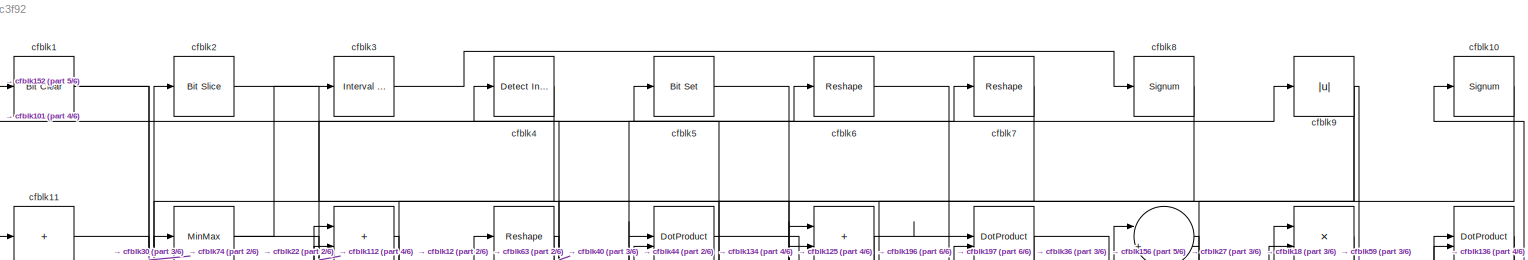
[diagram: root canvas - part 1/6, full width, top band]
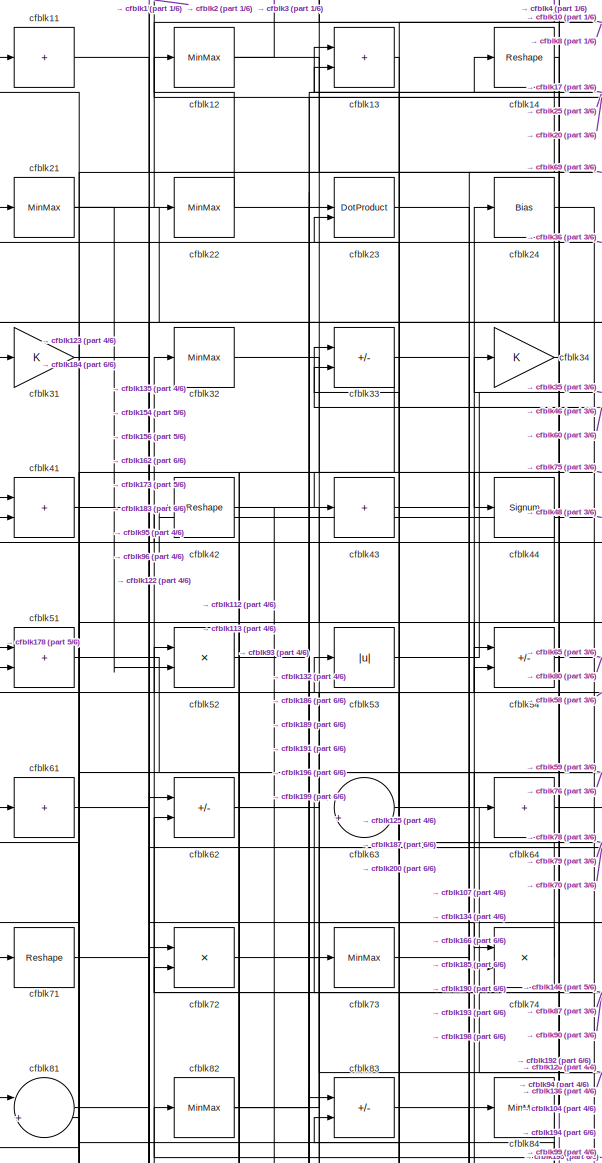
[diagram: root canvas - part 2/6, top left region]
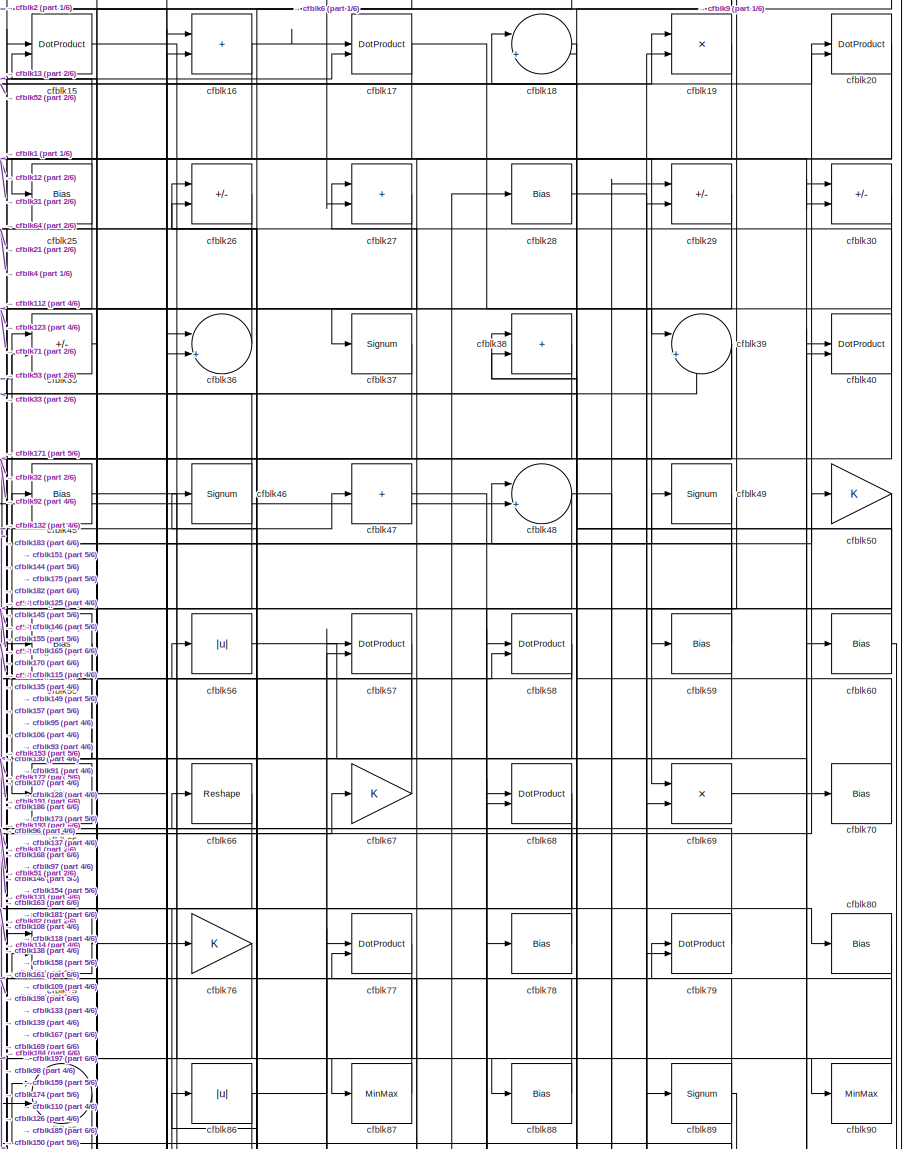
[diagram: root canvas - part 3/6, top right region]
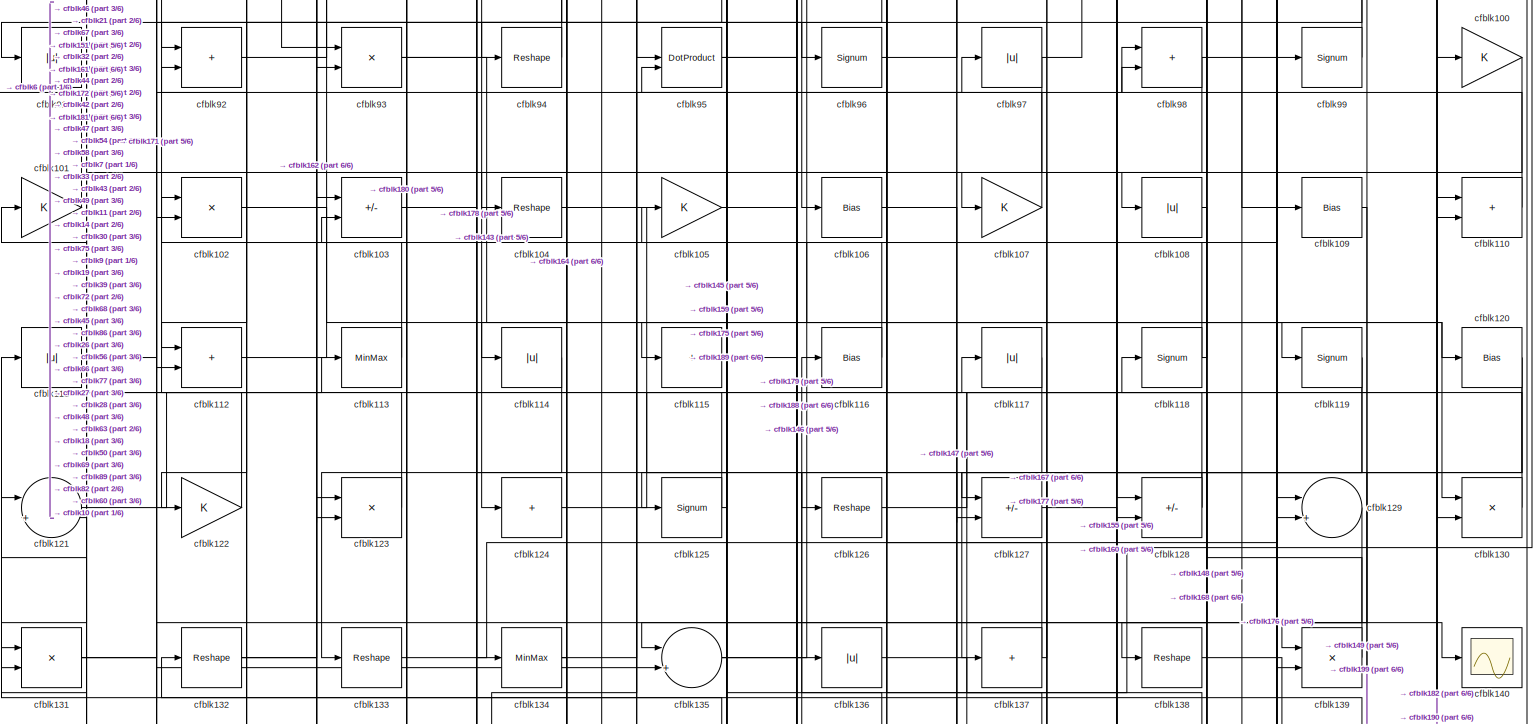
[diagram: root canvas - part 4/6, full width, middle band]
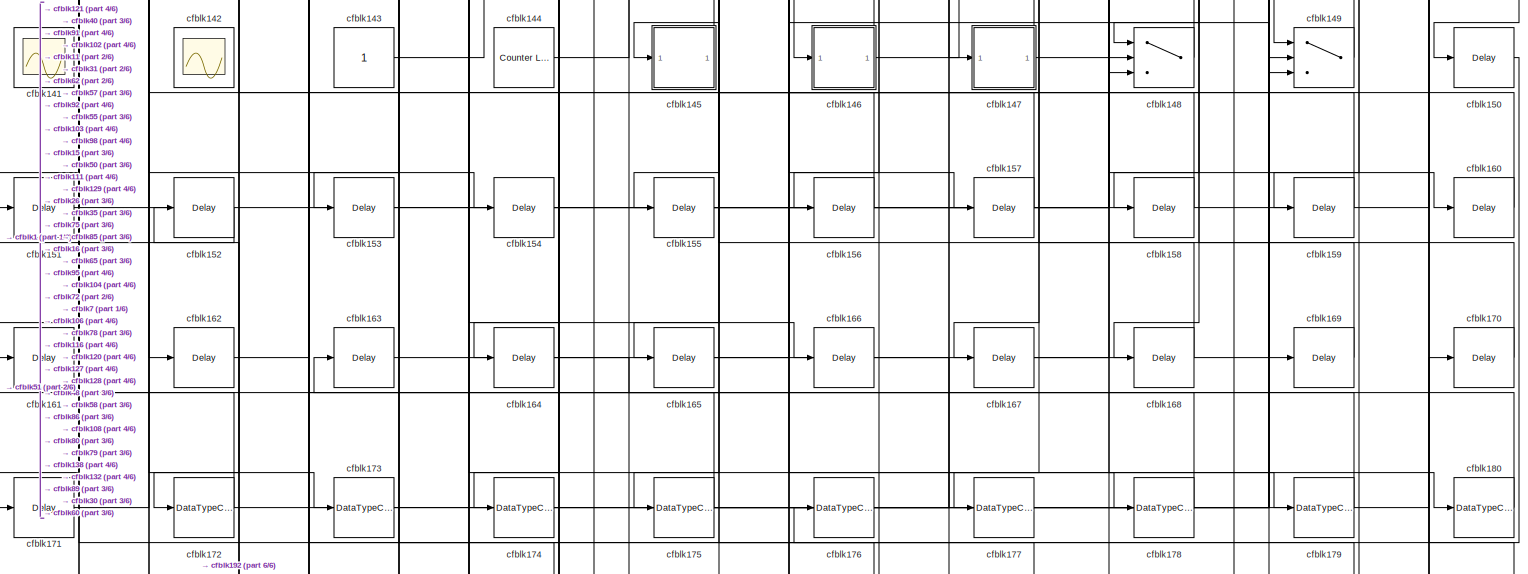
[diagram: root canvas - part 5/6, full width, bottom band]
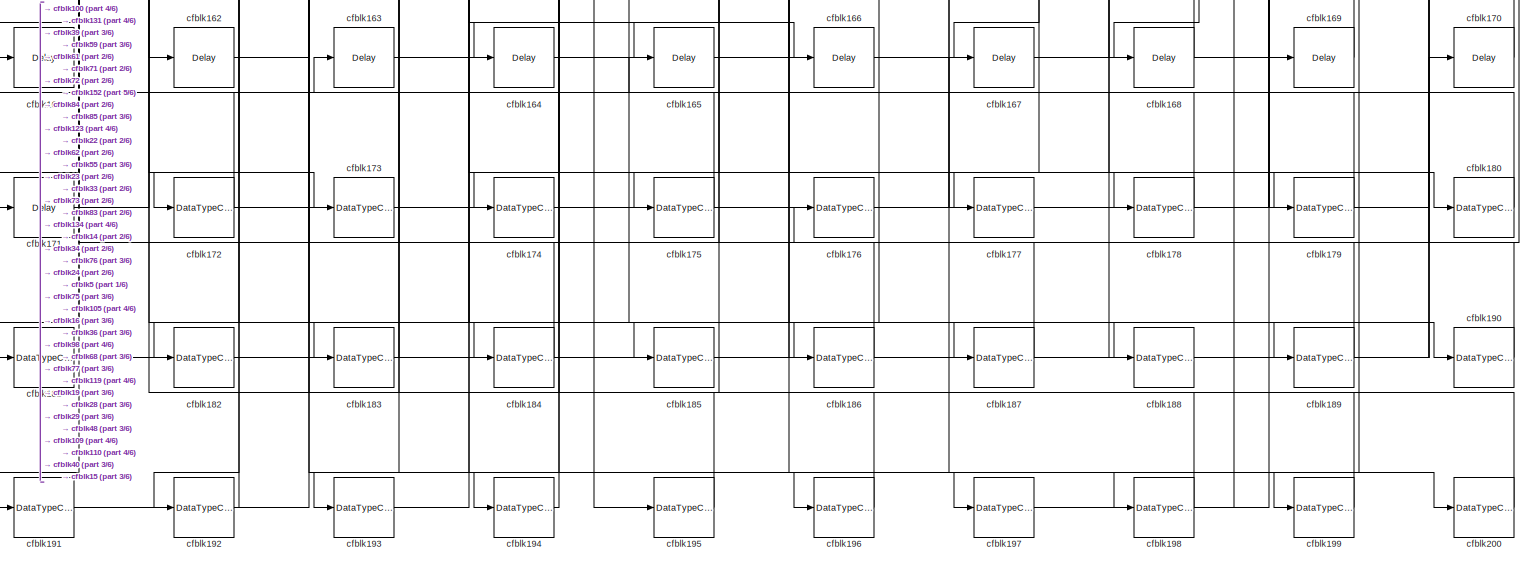
[diagram: root canvas - part 6/6, full width, bottom band]
MODEL slx_9fa7b20c3f92
KIND model
CONFIG AbsTol = auto
CONFIG EnableMultiTasking = off
CONFIG FixedStep = auto
CONFIG MaxStep = auto
CONFIG MinStep = auto
CONFIG RelTol = 1e-3
CONFIG SampleTimeConstraint = Unconstrained
CONFIG SolverName = VariableStepAuto
CONFIG StartTime = 0.0
CONFIG StopTime = 10.0
BLOCK [Reference] cfblk1  REF=simulink/Logic and Bit
Operations/Bit Clear
  LibrarySourceBlock = hdlsllib/Logic and Bit\nOperations/Bit Clear
  SourceBlock = simulink/Logic and Bit\nOperations/Bit Clear
  SourceType = Bit Clear
BLOCK [Signum] cfblk10
BLOCK [Gain] cfblk100
BLOCK [Gain] cfblk101
BLOCK [Product] cfblk102
  Inputs = */
  RndMeth = Zero
  SaturateOnIntegerOverflow = on
BLOCK [Sum] cfblk103
  IconShape = rectangular
  Inputs = +-
BLOCK [Reshape] cfblk104
BLOCK [Gain] cfblk105
BLOCK [Bias] cfblk106
  Bias = 0.0
  SaturateOnIntegerOverflow = off
BLOCK [Gain] cfblk107
BLOCK [Abs] cfblk108
  SaturateOnIntegerOverflow = off
BLOCK [Bias] cfblk109
  Bias = 0.0
  SaturateOnIntegerOverflow = off
BLOCK [Sum] cfblk11
  IconShape = rectangular
  Inputs = +
BLOCK [Sum] cfblk110
  IconShape = rectangular
BLOCK [Abs] cfblk111
  SaturateOnIntegerOverflow = off
BLOCK [Sum] cfblk112
  IconShape = rectangular
BLOCK [MinMax] cfblk113
BLOCK [Abs] cfblk114
  SaturateOnIntegerOverflow = off
BLOCK [Sum] cfblk115
  IconShape = rectangular
  Inputs = +
BLOCK [Bias] cfblk116
  Bias = 0.0
  SaturateOnIntegerOverflow = off
BLOCK [Abs] cfblk117
  SaturateOnIntegerOverflow = off
BLOCK [Signum] cfblk118
BLOCK [Signum] cfblk119
BLOCK [MinMax] cfblk12
BLOCK [Bias] cfblk120
  Bias = 0.0
  SaturateOnIntegerOverflow = off
BLOCK [Sum] cfblk121
  Inputs = |++
BLOCK [Gain] cfblk122
BLOCK [Product] cfblk123
  Inputs = */
  RndMeth = Zero
  SaturateOnIntegerOverflow = on
BLOCK [Sum] cfblk124
  IconShape = rectangular
  Inputs = +
BLOCK [Signum] cfblk125
BLOCK [Reshape] cfblk126
BLOCK [Sum] cfblk127
  IconShape = rectangular
  Inputs = +-
BLOCK [Sum] cfblk128
  IconShape = rectangular
  Inputs = +-
BLOCK [Sum] cfblk129
  Inputs = |++
BLOCK [Sum] cfblk13
  IconShape = rectangular
BLOCK [Product] cfblk130
  Inputs = */
  RndMeth = Zero
  SaturateOnIntegerOverflow = on
BLOCK [Product] cfblk131
  Inputs = */
  RndMeth = Zero
  SaturateOnIntegerOverflow = on
BLOCK [Reshape] cfblk132
BLOCK [Reshape] cfblk133
BLOCK [MinMax] cfblk134
BLOCK [Sum] cfblk135
  Inputs = |++
BLOCK [Abs] cfblk136
  SaturateOnIntegerOverflow = off
BLOCK [Sum] cfblk137
  IconShape = rectangular
  Inputs = +
BLOCK [Reshape] cfblk138
BLOCK [Product] cfblk139
  Inputs = */
  RndMeth = Zero
  SaturateOnIntegerOverflow = on
BLOCK [Reshape] cfblk14
BLOCK [Scope] cfblk140
  Floating = off
  NumInputPorts = 1
  ScopeSpecificationString = Simulink.scopes.TimeScopeBlockCfg('CurrentConfiguration', extmgr.ConfigurationSet(extmgr.Configuration('Core','General UI',true),extmgr.Configuration('Core','Source UI',true),extmgr.Configuration('Sources','WiredSimulink',true,'DataLoggingVariableName','ScopeData2','DataLoggingSaveFormat','Array','DataLoggingLimitDataPoints',true,'DataLoggingDecimation','1'),extmgr.Configuration('Visuals','Time Do...<+868ch>
BLOCK [Scope] cfblk141
  Floating = on
  NumInputPorts = 1
  ScopeSpecificationString = Simulink.scopes.TimeScopeBlockCfg('CurrentConfiguration', extmgr.ConfigurationSet(extmgr.Configuration('Core','General UI',true,'FigureColor',[0.156862745098039 0.156862745098039 0.156862745098039]),extmgr.Configuration('Core','Source UI',true),extmgr.Configuration('Sources','WiredSimulink',true,'DataLoggingVariableName','ScopeData1','DataLoggingSaveFormat','StructureWithTime','DataLoggingLimitDat...<+2713ch>
BLOCK [Scope] cfblk142
  Floating = on
  NumInputPorts = 1
  ScopeSpecificationString = Simulink.scopes.TimeScopeBlockCfg('CurrentConfiguration', extmgr.ConfigurationSet(extmgr.Configuration('Core','General UI',true,'FigureColor',[0.156862745098039 0.156862745098039 0.156862745098039]),extmgr.Configuration('Core','Source UI',true),extmgr.Configuration('Sources','WiredSimulink',true,'DataLoggingVariableName','ScopeData1','DataLoggingSaveFormat','StructureWithTime','DataLoggingLimitDat...<+2713ch>
BLOCK [Constant] cfblk143
  SampleTime = -1
BLOCK [Reference] cfblk144  REF=hdlsllib/Sources/Counter
Limited
  SourceBlock = hdlsllib/Sources/Counter\nLimited
  SourceType = Counter Limited
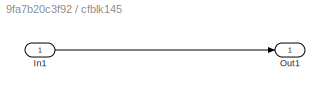
BLOCK [SubSystem] cfblk145
  LibrarySourceBlock = hdlsllib/Ports &\nSubsystems/Subsystem
BLOCK [Inport] cfblk145/In1
BLOCK [Outport] cfblk145/Out1
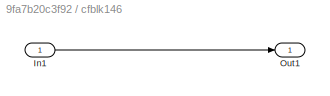
BLOCK [SubSystem] cfblk146
  LibrarySourceBlock = hdlsllib/Ports &\nSubsystems/Subsystem
BLOCK [Inport] cfblk146/In1
BLOCK [Outport] cfblk146/Out1
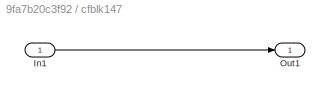
BLOCK [SubSystem] cfblk147
  LibrarySourceBlock = hdlsllib/Ports &\nSubsystems/Subsystem
BLOCK [Inport] cfblk147/In1
BLOCK [Outport] cfblk147/Out1
BLOCK [Switch] cfblk148
  InputSameDT = off
  SaturateOnIntegerOverflow = off
BLOCK [Switch] cfblk149
  InputSameDT = off
  SaturateOnIntegerOverflow = off
BLOCK [DotProduct] cfblk15
  OutDataTypeStr = Inherit: Inherit via internal rule
BLOCK [Delay] cfblk150
  InputPortMap = u0
  SampleTime = 1
BLOCK [Delay] cfblk151
  InputPortMap = u0
  SampleTime = 1
BLOCK [Delay] cfblk152
  InputPortMap = u0
  SampleTime = 1
BLOCK [Delay] cfblk153
  InputPortMap = u0
  SampleTime = 1
BLOCK [Delay] cfblk154
  InputPortMap = u0
  SampleTime = 1
BLOCK [Delay] cfblk155
  InputPortMap = u0
  SampleTime = 1
BLOCK [Delay] cfblk156
  InputPortMap = u0
  SampleTime = 1
BLOCK [Delay] cfblk157
  InputPortMap = u0
  SampleTime = 1
BLOCK [Delay] cfblk158
  InputPortMap = u0
  SampleTime = 1
BLOCK [Delay] cfblk159
  InputPortMap = u0
  SampleTime = 1
BLOCK [Sum] cfblk16
  IconShape = rectangular
BLOCK [Delay] cfblk160
  InputPortMap = u0
  SampleTime = 1
BLOCK [Delay] cfblk161
  InputPortMap = u0
  SampleTime = 1
BLOCK [Delay] cfblk162
  InputPortMap = u0
  SampleTime = 1
BLOCK [Delay] cfblk163
  InputPortMap = u0
  SampleTime = 1
BLOCK [Delay] cfblk164
  InputPortMap = u0
  SampleTime = 1
BLOCK [Delay] cfblk165
  InputPortMap = u0
  SampleTime = 1
BLOCK [Delay] cfblk166
  InputPortMap = u0
  SampleTime = 1
BLOCK [Delay] cfblk167
  InputPortMap = u0
  SampleTime = 1
BLOCK [Delay] cfblk168
  InputPortMap = u0
  SampleTime = 1
BLOCK [Delay] cfblk169
  InputPortMap = u0
  SampleTime = 1
BLOCK [DotProduct] cfblk17
  OutDataTypeStr = Inherit: Inherit via internal rule
BLOCK [Delay] cfblk170
  InputPortMap = u0
  SampleTime = 1
BLOCK [Delay] cfblk171
  InputPortMap = u0
  SampleTime = 1
BLOCK [DataTypeConversion] cfblk172
  RndMeth = Floor
  SaturateOnIntegerOverflow = off
BLOCK [DataTypeConversion] cfblk173
  OutDataTypeStr = uint8
  RndMeth = Floor
  SaturateOnIntegerOverflow = off
BLOCK [DataTypeConversion] cfblk174
  OutDataTypeStr = uint8
  RndMeth = Floor
  SaturateOnIntegerOverflow = off
BLOCK [DataTypeConversion] cfblk175
  RndMeth = Floor
  SaturateOnIntegerOverflow = off
BLOCK [DataTypeConversion] cfblk176
  OutDataTypeStr = uint8
  RndMeth = Floor
  SaturateOnIntegerOverflow = off
BLOCK [DataTypeConversion] cfblk177
  OutDataTypeStr = uint8
  RndMeth = Floor
  SaturateOnIntegerOverflow = off
BLOCK [DataTypeConversion] cfblk178
  OutDataTypeStr = uint8
  RndMeth = Floor
  SaturateOnIntegerOverflow = off
BLOCK [DataTypeConversion] cfblk179
  OutDataTypeStr = uint8
  RndMeth = Floor
  SaturateOnIntegerOverflow = off
BLOCK [Sum] cfblk18
  Inputs = |++
BLOCK [DataTypeConversion] cfblk180
  OutDataTypeStr = uint8
  RndMeth = Floor
  SaturateOnIntegerOverflow = off
BLOCK [DataTypeConversion] cfblk181
  OutDataTypeStr = uint8
  RndMeth = Floor
  SaturateOnIntegerOverflow = off
BLOCK [DataTypeConversion] cfblk182
  OutDataTypeStr = uint8
  RndMeth = Floor
  SaturateOnIntegerOverflow = off
BLOCK [DataTypeConversion] cfblk183
  RndMeth = Floor
  SaturateOnIntegerOverflow = off
BLOCK [DataTypeConversion] cfblk184
  OutDataTypeStr = uint8
  RndMeth = Floor
  SaturateOnIntegerOverflow = off
BLOCK [DataTypeConversion] cfblk185
  OutDataTypeStr = uint8
  RndMeth = Floor
  SaturateOnIntegerOverflow = off
BLOCK [DataTypeConversion] cfblk186
  OutDataTypeStr = uint8
  RndMeth = Floor
  SaturateOnIntegerOverflow = off
BLOCK [DataTypeConversion] cfblk187
  OutDataTypeStr = uint8
  RndMeth = Floor
  SaturateOnIntegerOverflow = off
BLOCK [DataTypeConversion] cfblk188
  OutDataTypeStr = uint8
  RndMeth = Floor
  SaturateOnIntegerOverflow = off
BLOCK [DataTypeConversion] cfblk189
  OutDataTypeStr = uint8
  RndMeth = Floor
  SaturateOnIntegerOverflow = off
BLOCK [Product] cfblk19
  Inputs = */
  RndMeth = Zero
  SaturateOnIntegerOverflow = on
BLOCK [DataTypeConversion] cfblk190
  OutDataTypeStr = uint8
  RndMeth = Floor
  SaturateOnIntegerOverflow = off
BLOCK [DataTypeConversion] cfblk191
  OutDataTypeStr = uint8
  RndMeth = Floor
  SaturateOnIntegerOverflow = off
BLOCK [DataTypeConversion] cfblk192
  OutDataTypeStr = uint8
  RndMeth = Floor
  SaturateOnIntegerOverflow = off
BLOCK [DataTypeConversion] cfblk193
  OutDataTypeStr = uint8
  RndMeth = Floor
  SaturateOnIntegerOverflow = off
BLOCK [DataTypeConversion] cfblk194
  OutDataTypeStr = uint8
  RndMeth = Floor
  SaturateOnIntegerOverflow = off
BLOCK [DataTypeConversion] cfblk195
  OutDataTypeStr = uint8
  RndMeth = Floor
  SaturateOnIntegerOverflow = off
BLOCK [DataTypeConversion] cfblk196
  OutDataTypeStr = boolean
  RndMeth = Floor
  SaturateOnIntegerOverflow = off
BLOCK [DataTypeConversion] cfblk197
  OutDataTypeStr = uint8
  RndMeth = Floor
  SaturateOnIntegerOverflow = off
BLOCK [DataTypeConversion] cfblk198
  RndMeth = Floor
  SaturateOnIntegerOverflow = off
BLOCK [DataTypeConversion] cfblk199
  OutDataTypeStr = uint8
  RndMeth = Floor
  SaturateOnIntegerOverflow = off
BLOCK [Reference] cfblk2  REF=hdlsllib/Logic and Bit
Operations/Bit Slice
  SourceBlock = hdlsllib/Logic and Bit\nOperations/Bit Slice
  SourceType = Bit Slice
BLOCK [DotProduct] cfblk20
  OutDataTypeStr = Inherit: Inherit via internal rule
BLOCK [DataTypeConversion] cfblk200
  OutDataTypeStr = uint8
  RndMeth = Floor
  SaturateOnIntegerOverflow = off
BLOCK [MinMax] cfblk21
BLOCK [MinMax] cfblk22
BLOCK [DotProduct] cfblk23
  OutDataTypeStr = Inherit: Inherit via internal rule
BLOCK [Bias] cfblk24
  Bias = 0.0
  SaturateOnIntegerOverflow = off
BLOCK [Bias] cfblk25
  Bias = 0.0
  SaturateOnIntegerOverflow = off
BLOCK [Sum] cfblk26
  IconShape = rectangular
  Inputs = +-
BLOCK [Sum] cfblk27
  IconShape = rectangular
BLOCK [Bias] cfblk28
  Bias = 0.0
  SaturateOnIntegerOverflow = off
BLOCK [Sum] cfblk29
  IconShape = rectangular
  Inputs = +-
BLOCK [Reference] cfblk3  REF=hdlsllib/Logic and Bit
Operations/Interval Test
  SourceBlock = hdlsllib/Logic and Bit\nOperations/Interval Test
  SourceType = Interval Test
BLOCK [Sum] cfblk30
  IconShape = rectangular
  Inputs = +-
BLOCK [Gain] cfblk31
BLOCK [MinMax] cfblk32
BLOCK [Sum] cfblk33
  IconShape = rectangular
  Inputs = +-
BLOCK [Gain] cfblk34
BLOCK [Sum] cfblk35
  IconShape = rectangular
  Inputs = +-
BLOCK [Sum] cfblk36
  Inputs = |++
BLOCK [Signum] cfblk37
BLOCK [Sum] cfblk38
  IconShape = rectangular
BLOCK [Sum] cfblk39
  Inputs = |++
BLOCK [Reference] cfblk4  REF=simulink/Logic and Bit
Operations/Detect
Increase
  LibrarySourceBlock = hdlsllib/Logic and Bit\nOperations/Detect\nIncrease
  SourceBlock = simulink/Logic and Bit\nOperations/Detect\nIncrease
  SourceType = Detect Increase
BLOCK [DotProduct] cfblk40
  OutDataTypeStr = Inherit: Inherit via internal rule
BLOCK [Sum] cfblk41
  IconShape = rectangular
BLOCK [Reshape] cfblk42
BLOCK [Sum] cfblk43
  IconShape = rectangular
  Inputs = +
BLOCK [Signum] cfblk44
BLOCK [Bias] cfblk45
  Bias = 0.0
  SaturateOnIntegerOverflow = off
BLOCK [Signum] cfblk46
BLOCK [Sum] cfblk47
  IconShape = rectangular
  Inputs = +
BLOCK [Sum] cfblk48
  Inputs = |++
BLOCK [Signum] cfblk49
BLOCK [Reference] cfblk5  REF=simulink/Logic and Bit
Operations/Bit Set
  LibrarySourceBlock = hdlsllib/Logic and Bit\nOperations/Bit Set
  SourceBlock = simulink/Logic and Bit\nOperations/Bit Set
  SourceType = Bit Set
BLOCK [Gain] cfblk50
BLOCK [Sum] cfblk51
  IconShape = rectangular
BLOCK [Product] cfblk52
  Inputs = */
  RndMeth = Zero
  SaturateOnIntegerOverflow = on
BLOCK [Abs] cfblk53
  SaturateOnIntegerOverflow = off
BLOCK [Sum] cfblk54
  IconShape = rectangular
  Inputs = +-
BLOCK [Bias] cfblk55
  Bias = 0.0
  SaturateOnIntegerOverflow = off
BLOCK [Abs] cfblk56
  SaturateOnIntegerOverflow = off
BLOCK [DotProduct] cfblk57
  OutDataTypeStr = Inherit: Inherit via internal rule
BLOCK [DotProduct] cfblk58
  OutDataTypeStr = Inherit: Inherit via internal rule
BLOCK [Bias] cfblk59
  Bias = 0.0
  SaturateOnIntegerOverflow = off
BLOCK [Reshape] cfblk6
BLOCK [Bias] cfblk60
  Bias = 0.0
  SaturateOnIntegerOverflow = off
BLOCK [Sum] cfblk61
  IconShape = rectangular
  Inputs = +
BLOCK [Sum] cfblk62
  IconShape = rectangular
  Inputs = +-
BLOCK [Sum] cfblk63
  Inputs = |++
BLOCK [Sum] cfblk64
  IconShape = rectangular
  Inputs = +
BLOCK [Bias] cfblk65
  Bias = 0.0
  SaturateOnIntegerOverflow = off
BLOCK [Reshape] cfblk66
BLOCK [Gain] cfblk67
BLOCK [DotProduct] cfblk68
  OutDataTypeStr = Inherit: Inherit via internal rule
BLOCK [Product] cfblk69
  Inputs = */
  RndMeth = Zero
  SaturateOnIntegerOverflow = on
BLOCK [Reshape] cfblk7
BLOCK [Bias] cfblk70
  Bias = 0.0
  SaturateOnIntegerOverflow = off
BLOCK [Reshape] cfblk71
BLOCK [Product] cfblk72
  Inputs = */
  RndMeth = Zero
  SaturateOnIntegerOverflow = on
BLOCK [MinMax] cfblk73
BLOCK [Product] cfblk74
  Inputs = */
  RndMeth = Zero
  SaturateOnIntegerOverflow = on
BLOCK [Product] cfblk75
  Inputs = */
  RndMeth = Zero
  SaturateOnIntegerOverflow = on
BLOCK [Gain] cfblk76
BLOCK [DotProduct] cfblk77
  OutDataTypeStr = Inherit: Inherit via internal rule
BLOCK [Bias] cfblk78
  Bias = 0.0
  SaturateOnIntegerOverflow = off
BLOCK [DotProduct] cfblk79
  OutDataTypeStr = Inherit: Inherit via internal rule
BLOCK [Signum] cfblk8
BLOCK [Bias] cfblk80
  Bias = 0.0
  SaturateOnIntegerOverflow = off
BLOCK [Sum] cfblk81
  Inputs = |++
BLOCK [MinMax] cfblk82
BLOCK [Sum] cfblk83
  IconShape = rectangular
  Inputs = +-
BLOCK [MinMax] cfblk84
BLOCK [Sum] cfblk85
  Inputs = |++
BLOCK [Abs] cfblk86
  SaturateOnIntegerOverflow = off
BLOCK [MinMax] cfblk87
BLOCK [Bias] cfblk88
  Bias = 0.0
  SaturateOnIntegerOverflow = off
BLOCK [Signum] cfblk89
BLOCK [Abs] cfblk9
  SaturateOnIntegerOverflow = off
BLOCK [MinMax] cfblk90
BLOCK [Abs] cfblk91
  SaturateOnIntegerOverflow = off
BLOCK [Sum] cfblk92
  IconShape = rectangular
BLOCK [Product] cfblk93
  Inputs = */
  RndMeth = Zero
  SaturateOnIntegerOverflow = on
BLOCK [Reshape] cfblk94
BLOCK [DotProduct] cfblk95
  OutDataTypeStr = Inherit: Inherit via internal rule
BLOCK [Signum] cfblk96
BLOCK [Abs] cfblk97
  SaturateOnIntegerOverflow = off
BLOCK [Sum] cfblk98
  IconShape = rectangular
BLOCK [Signum] cfblk99
LINE cfblk100:1 -> cfblk181:1
LINE cfblk101:1 -> cfblk6:1
LINE cfblk102:1 -> cfblk120:1
LINE cfblk103:1 -> cfblk178:1
LINE cfblk104:1 -> cfblk146:1
LINE cfblk105:1 -> cfblk188:1
LINE cfblk106:1 -> cfblk147:1
LINE cfblk107:1 -> cfblk66:1
LINE cfblk108:1 -> cfblk148:1
LINE cfblk109:1 -> cfblk199:1
LINE cfblk10:1 -> cfblk63:2
LINE cfblk110:1 -> cfblk98:1
LINE cfblk111:1 -> cfblk97:1
LINE cfblk112:1 -> cfblk7:1
LINE cfblk113:1 -> cfblk52:1
LINE cfblk114:1 -> cfblk133:1
LINE cfblk115:1 -> cfblk19:1
LINE cfblk116:1 -> cfblk102:1
LINE cfblk117:1 -> cfblk126:1
NET cfblk118:1 -> cfblk38:2, cfblk56:1
NET cfblk119:1 -> cfblk137:1, cfblk168:1
LINE cfblk11:1 -> cfblk173:1
NET cfblk120:1 -> cfblk139:1, cfblk177:1
LINE cfblk121:1 -> cfblk113:1
LINE cfblk122:1 -> cfblk32:1
LINE cfblk123:1 -> cfblk81:1
LINE cfblk124:1 -> cfblk117:1
NET cfblk125:1 -> cfblk33:1, cfblk75:2
LINE cfblk126:1 -> cfblk60:1
LINE cfblk127:1 -> cfblk160:1
NET cfblk128:1 -> cfblk127:1, cfblk46:1
LINE cfblk129:1 -> cfblk175:1
NET cfblk12:1 -> cfblk3:1, cfblk69:1
LINE cfblk130:1 -> cfblk101:1
NET cfblk131:1 -> cfblk140:1, cfblk67:1
NET cfblk132:1 -> cfblk47:1, cfblk54:1
LINE cfblk133:1 -> cfblk89:1
NET cfblk134:1 -> cfblk164:1, cfblk9:1
NET cfblk135:1 -> cfblk39:2, cfblk99:1
LINE cfblk136:1 -> cfblk10:1
NET cfblk137:1 -> cfblk26:2, cfblk27:1
LINE cfblk138:1 -> cfblk149:1
LINE cfblk139:1 -> cfblk118:1
LINE cfblk13:1 -> cfblk43:1
LINE cfblk143:1 -> cfblk98:2
LINE cfblk144:1 -> cfblk50:1
LINE cfblk145/In1:1 -> cfblk145/Out1:1
LINE cfblk145:1 -> cfblk111:1
LINE cfblk146/In1:1 -> cfblk146/Out1:1
NET cfblk146:1 -> cfblk72:2, cfblk78:1
LINE cfblk147/In1:1 -> cfblk147/Out1:1
NET cfblk147:1 -> cfblk116:1, cfblk180:1
LINE cfblk148:1 -> cfblk86:1
LINE cfblk149:1 -> cfblk132:1
NET cfblk14:1 -> cfblk104:1, cfblk74:2
LINE cfblk150:1 -> cfblk176:1
LINE cfblk151:1 -> cfblk30:1
LINE cfblk152:1 -> cfblk1:1
LINE cfblk153:1 -> cfblk148:2
LINE cfblk154:1 -> cfblk58:1
LINE cfblk155:1 -> cfblk128:2
LINE cfblk156:1 -> cfblk62:1
LINE cfblk157:1 -> cfblk85:1
LINE cfblk158:1 -> cfblk16:1
LINE cfblk159:1 -> cfblk95:2
LINE cfblk15:1 -> cfblk87:1
LINE cfblk160:1 -> cfblk92:2
LINE cfblk161:1 -> cfblk131:2
LINE cfblk162:1 -> cfblk123:1
LINE cfblk163:1 -> cfblk68:2
LINE cfblk164:1 -> cfblk187:1
LINE cfblk165:1 -> cfblk36:1
LINE cfblk166:1 -> cfblk200:1
LINE cfblk167:1 -> cfblk19:2
LINE cfblk168:1 -> cfblk77:2
LINE cfblk169:1 -> cfblk48:1
NET cfblk16:1 -> cfblk17:1, cfblk25:1
LINE cfblk170:1 -> cfblk15:2
LINE cfblk171:1 -> cfblk102:2
NET cfblk172:1 -> cfblk121:1, cfblk149:2
LINE cfblk173:1 -> cfblk57:1
LINE cfblk174:1 -> cfblk57:2
NET cfblk175:1 -> cfblk15:1, cfblk40:2, cfblk79:2
LINE cfblk176:1 -> cfblk129:1
LINE cfblk177:1 -> cfblk129:2
LINE cfblk178:1 -> cfblk51:1
LINE cfblk179:1 -> cfblk103:1
NET cfblk17:1 -> cfblk39:1, cfblk64:1
LINE cfblk180:1 -> cfblk103:2
LINE cfblk181:1 -> cfblk68:1
LINE cfblk182:1 -> cfblk100:1
NET cfblk183:1 -> cfblk163:1, cfblk16:2
LINE cfblk184:1 -> cfblk61:1
LINE cfblk185:1 -> cfblk40:1
LINE cfblk186:1 -> cfblk23:1
LINE cfblk187:1 -> cfblk23:2
LINE cfblk188:1 -> cfblk170:1
LINE cfblk189:1 -> cfblk105:1
LINE cfblk18:1 -> cfblk108:1
LINE cfblk190:1 -> cfblk110:1
LINE cfblk191:1 -> cfblk73:1
LINE cfblk192:1 -> cfblk152:1
LINE cfblk193:1 -> cfblk84:1
LINE cfblk194:1 -> cfblk14:1
LINE cfblk195:1 -> cfblk34:1
LINE cfblk196:1 -> cfblk5:1
LINE cfblk197:1 -> cfblk29:2
NET cfblk198:1 -> cfblk29:1, cfblk72:1
LINE cfblk199:1 -> cfblk83:1
LINE cfblk19:1 -> cfblk37:1
NET cfblk1:1 -> cfblk30:2, cfblk74:1
LINE cfblk200:1 -> cfblk83:2
NET cfblk20:1 -> cfblk31:1, cfblk88:1
NET cfblk21:1 -> cfblk135:2, cfblk52:2, cfblk95:1
NET cfblk22:1 -> cfblk189:1, cfblk2:1
LINE cfblk23:1 -> cfblk185:1
NET cfblk24:1 -> cfblk195:1, cfblk41:1
NET cfblk25:1 -> cfblk13:1, cfblk71:1
LINE cfblk26:1 -> cfblk155:1
LINE cfblk27:1 -> cfblk112:2
LINE cfblk28:1 -> cfblk169:1
LINE cfblk29:1 -> cfblk123:2
LINE cfblk2:1 -> cfblk36:2
LINE cfblk30:1 -> cfblk115:1
LINE cfblk31:1 -> cfblk154:1
LINE cfblk32:1 -> cfblk75:1
NET cfblk33:1 -> cfblk122:1, cfblk166:1
LINE cfblk34:1 -> cfblk194:1
LINE cfblk35:1 -> cfblk145:1
LINE cfblk36:1 -> cfblk21:1
LINE cfblk37:1 -> cfblk85:2
LINE cfblk38:1 -> cfblk92:1
NET cfblk39:1 -> cfblk138:1, cfblk161:1
LINE cfblk3:1 -> cfblk8:1
NET cfblk40:1 -> cfblk171:1, cfblk4:1
NET cfblk41:1 -> cfblk48:2, cfblk81:2
NET cfblk42:1 -> cfblk134:1, cfblk93:1
LINE cfblk43:1 -> cfblk107:1
LINE cfblk44:1 -> cfblk112:1
LINE cfblk45:1 -> cfblk130:1
NET cfblk46:1 -> cfblk121:2, cfblk13:2
LINE cfblk47:1 -> cfblk130:2
NET cfblk48:1 -> cfblk109:1, cfblk148:3
LINE cfblk49:1 -> cfblk124:1
LINE cfblk4:1 -> cfblk22:1
NET cfblk50:1 -> cfblk139:2, cfblk94:1
LINE cfblk51:1 -> cfblk76:1
LINE cfblk52:1 -> cfblk20:2
LINE cfblk53:1 -> cfblk35:2
NET cfblk54:1 -> cfblk65:1, cfblk80:1
NET cfblk55:1 -> cfblk153:1, cfblk193:1
LINE cfblk56:1 -> cfblk110:2
LINE cfblk57:1 -> cfblk172:1
NET cfblk58:1 -> cfblk131:1, cfblk54:2
NET cfblk59:1 -> cfblk12:1, cfblk191:1, cfblk45:1
LINE cfblk5:1 -> cfblk197:1
NET cfblk60:1 -> cfblk150:1, cfblk33:2, cfblk38:1
LINE cfblk61:1 -> cfblk183:1
NET cfblk62:1 -> cfblk196:1, cfblk24:1
LINE cfblk63:1 -> cfblk128:1
LINE cfblk64:1 -> cfblk90:1
LINE cfblk65:1 -> cfblk157:1
LINE cfblk66:1 -> cfblk114:1
LINE cfblk67:1 -> cfblk35:1
NET cfblk68:1 -> cfblk106:1, cfblk93:2
LINE cfblk69:1 -> cfblk20:1
LINE cfblk6:1 -> cfblk27:2
LINE cfblk70:1 -> cfblk18:1
LINE cfblk71:1 -> cfblk162:1
LINE cfblk72:1 -> cfblk136:1
LINE cfblk73:1 -> cfblk190:1
LINE cfblk74:1 -> cfblk53:1
NET cfblk75:1 -> cfblk149:3, cfblk165:1
LINE cfblk76:1 -> cfblk184:1
LINE cfblk77:1 -> cfblk186:1
LINE cfblk78:1 -> cfblk41:2
LINE cfblk79:1 -> cfblk51:2
LINE cfblk7:1 -> cfblk156:1
LINE cfblk80:1 -> cfblk158:1
LINE cfblk81:1 -> cfblk96:1
NET cfblk82:1 -> cfblk17:2, cfblk42:1, cfblk70:1
LINE cfblk83:1 -> cfblk198:1
LINE cfblk84:1 -> cfblk192:1
LINE cfblk85:1 -> cfblk182:1
NET cfblk86:1 -> cfblk79:1, cfblk91:1
LINE cfblk87:1 -> cfblk62:2
LINE cfblk88:1 -> cfblk55:1
NET cfblk89:1 -> cfblk159:1, cfblk174:1, cfblk26:1
LINE cfblk8:1 -> cfblk44:1
LINE cfblk90:1 -> cfblk63:1
LINE cfblk91:1 -> cfblk151:1
LINE cfblk92:1 -> cfblk58:2
NET cfblk93:1 -> cfblk119:1, cfblk127:2
LINE cfblk94:1 -> cfblk11:1
NET cfblk95:1 -> cfblk179:1, cfblk49:1
LINE cfblk96:1 -> cfblk77:1
NET cfblk97:1 -> cfblk135:1, cfblk28:1
NET cfblk98:1 -> cfblk167:1, cfblk69:2
LINE cfblk99:1 -> cfblk82:1
NET cfblk9:1 -> cfblk125:1, cfblk18:2, cfblk59:1
note: NET lines group one-source signal fan-out (src -> all destinations, sorted); 1:1 wires keep LINE
